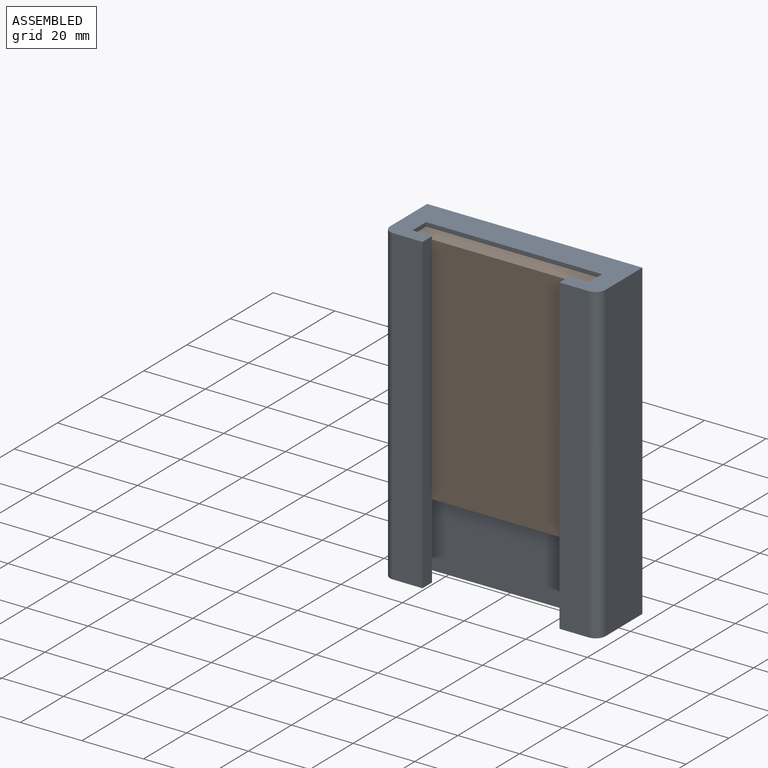
[diagram: assembled view]
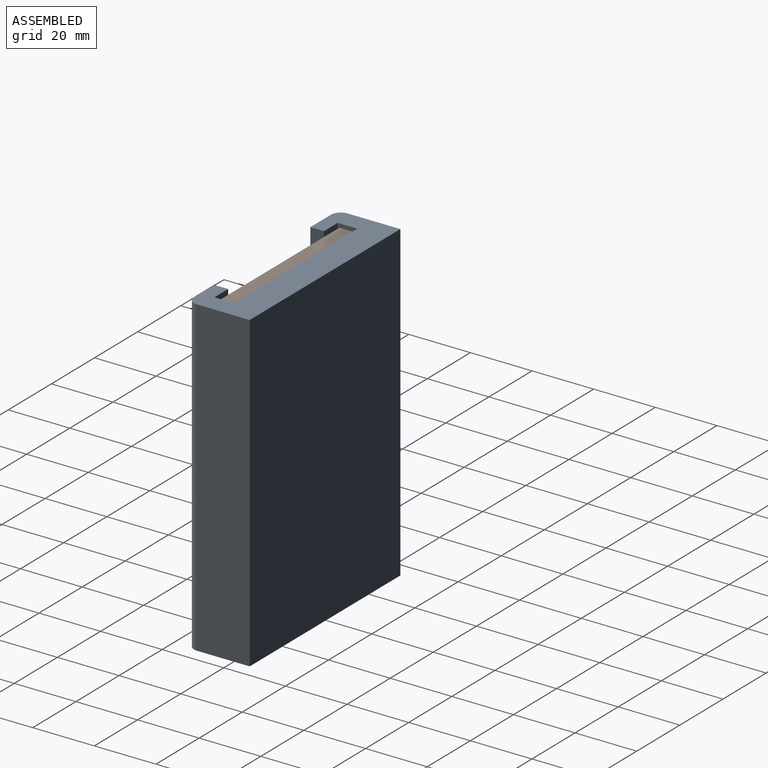
[diagram: assembled view, second angle]
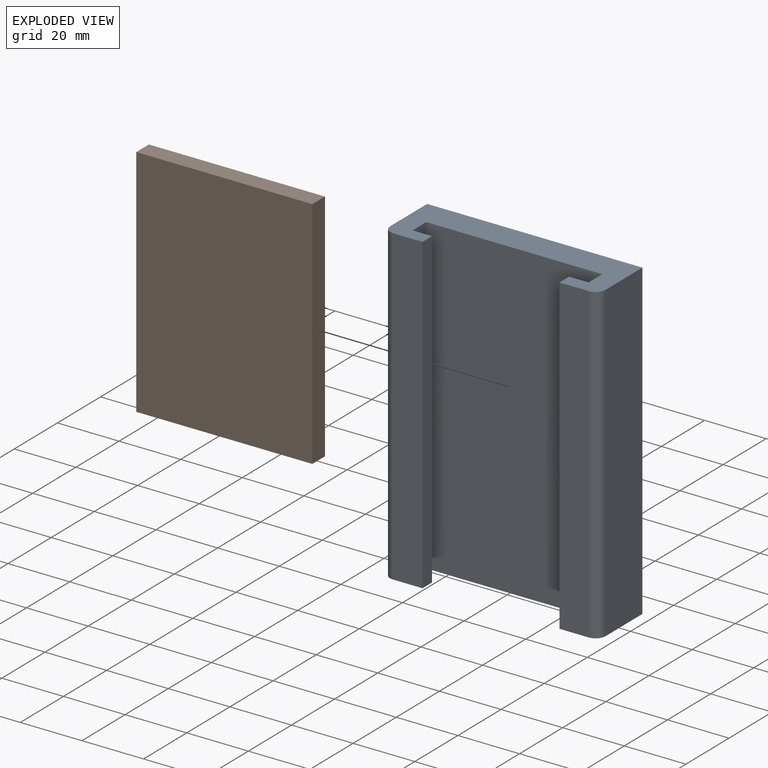
[diagram: exploded view]
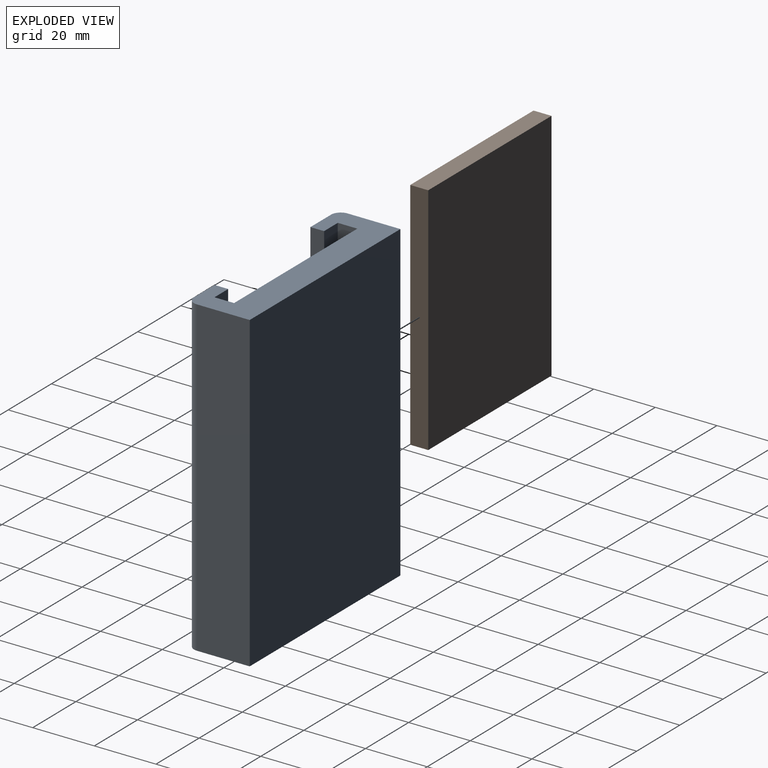
[diagram: exploded view, second angle]
ASSEMBLY  parts=2 mates=3
PART A: 16 faces, bbox 69.9x20.3x101.6 mm
  f0: plane 101.6x9.53mm, normal (0,-1,0), area 967.7mm2, adj f1,f12,f13,f15
  f1: plane 101.6x4.43mm, normal (1,0,0), area 449.7mm2, adj f0,f2,f12,f13
  f2: plane 101.6x6.35mm, normal (0,1,0), area 645.2mm2, adj f1,f3,f12,f13
  f3: plane 101.6x6.35mm, normal (1,0,0), area 645.2mm2, adj f2,f4,f12,f13
  f4: plane 101.6x57.15mm, normal (0,-1,0), area 5806.4mm2, adj f3,f5,f12,f13
  f5: plane 101.6x6.35mm, normal (-1,0,0), area 645.2mm2, adj f4,f6,f12,f13
  f6: plane 101.6x6.35mm, normal (0,1,0), area 645.2mm2, adj f5,f7,f12,f13
  f7: plane 101.6x4.43mm, normal (-1,0,0), area 449.7mm2, adj f6,f8,f12,f13
  f8: plane 101.6x9.53mm, normal (0,-1,0), area 967.7mm2, adj f7,f12,f13,f14
  f9: plane 101.6x17.13mm, normal (1,0,0), area 1740mm2, adj f10,f12,f13,f14
  f10: plane 101.6x69.85mm, normal (0,1,0), area 7096.8mm2, adj f9,f11,f12,f13
  f11: plane 101.6x17.13mm, normal (-1,0,0), area 1740mm2, adj f10,f12,f13,f15
  f12: plane 69.85x20.3mm, normal (0,0,1), area 854.1mm2, adj f0,f1,f2,f3,f4,f5,f6,f7
  f13: plane 69.85x20.3mm, normal (0,0,-1), area 854.1mm2, adj f0,f1,f2,f3,f4,f5,f6,f7
  f14: cylinder r=3.17mm len=101.6mm, axis (0,0,-1), area 506.7mm2, adj f8,f9,f12,f13
  f15: cylinder r=3.17mm len=101.6mm, axis (0,0,-1), area 506.7mm2, adj f0,f11,f12,f13
PART B: 6 faces, bbox 57.2x5.8x76.2 mm
  f0: plane 76.2x57.15mm, normal (0,1,0), area 4354.8mm2, adj f1,f3,f4,f5
  f1: plane 76.2x5.84mm, normal (-1,0,0), area 445.2mm2, adj f0,f2,f4,f5
  f2: plane 76.2x57.15mm, normal (0,-1,0), area 4354.8mm2, adj f1,f3,f4,f5
  f3: plane 76.2x5.84mm, normal (1,0,0), area 445.2mm2, adj f0,f2,f4,f5
  f4: plane 57.15x5.84mm, normal (0,0,1), area 333.9mm2, adj f0,f1,f2,f3
  f5: plane 57.15x5.84mm, normal (0,0,-1), area 333.9mm2, adj f0,f1,f2,f3
PLACE A t=(-18.51,-12.84,-35.15)mm fixed
PLACE B t=(-24.86,-2.06,-11.05)mm
MATE planar B.f1 <-> A.f3  axis (-1,0,0) through (-24.86,-4.98,27.05)mm
MATE planar B.f0 <-> A.f4  axis (0,1,0) through (3.72,-2.06,27.05)mm
MATE parallel A.f4 <-> B.f0  axis (0,-1,0) through (3.72,-2.06,15.65)mm
